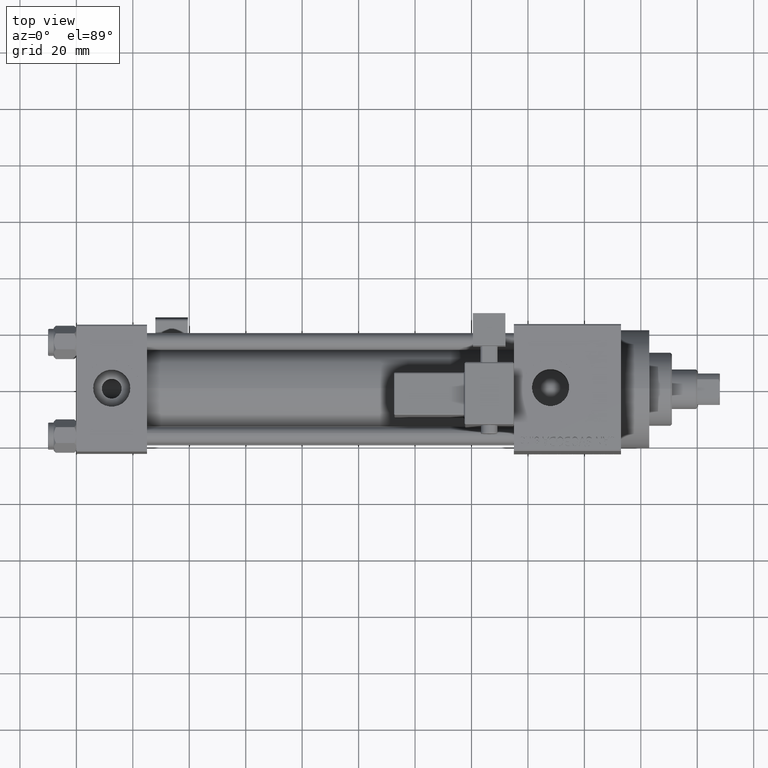
[diagram: clean part render]
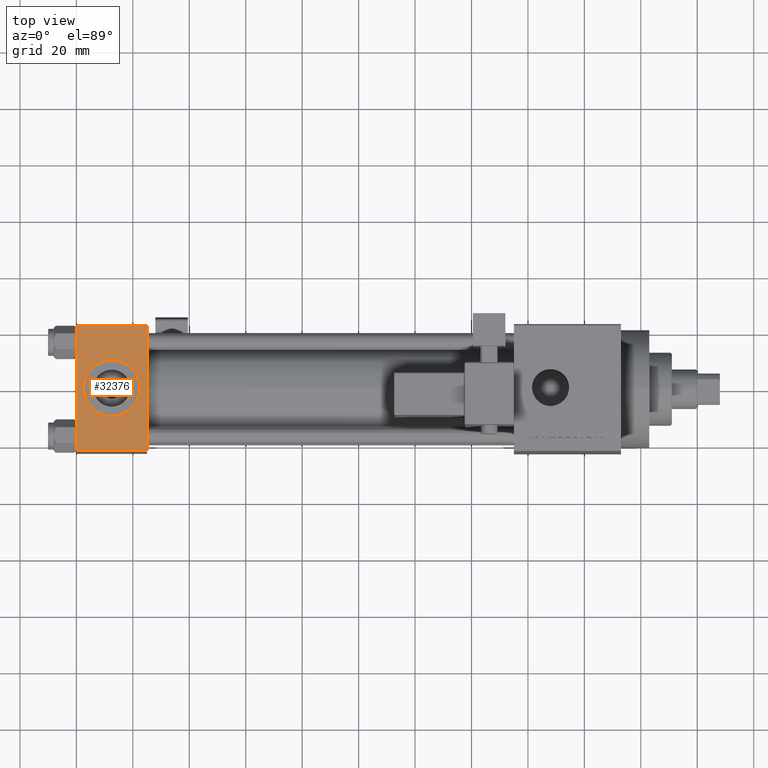
[diagram: same view with one face highlighted and labeled with its STEP entity id]
A machine part, top view. The second image highlights one B-rep face of the part: STEP entity #32376.
In plain terms, the highlighted planar face has unit normal (0, 0, -1).
Its self-contained STEP definition (entity closure, byte-faithful):
#90 = VECTOR ( 'NONE', #42861, 1000.000000000000000 ) ;
#1875 = CARTESIAN_POINT ( 'NONE',  ( 0.000000000000000000, 21.99999999999999289, 22.50000000000000355 ) ) ;
#1929 = DIRECTION ( 'NONE',  ( 1.000000000000000000, 0.000000000000000000, 0.000000000000000000 ) ) ;
#2356 = CARTESIAN_POINT ( 'NONE',  ( 0.000000000000000000, -21.99999999999997868, 22.50000000000000000 ) ) ;
#3723 = CARTESIAN_POINT ( 'NONE',  ( 0.000000000000000000, 21.99999999999999289, 22.50000000000000355 ) ) ;
#4296 = CARTESIAN_POINT ( 'NONE',  ( 25.00000000000000000, 22.50000000000000000, 22.50000000000000355 ) ) ;
#4976 = EDGE_CURVE ( 'NONE', #39117, #25825, #5700, .T. ) ;
#5700 = LINE ( 'NONE', #43842, #22023 ) ;
#8060 = CIRCLE ( 'NONE', #34526, 9.999999999999998224 ) ;
#9202 = VERTEX_POINT ( 'NONE', #39089 ) ;
#11837 = PLANE ( 'NONE',  #30373 ) ;
#14211 = EDGE_CURVE ( 'NONE', #29528, #25825, #14415, .T. ) ;
#14415 = LINE ( 'NONE', #38256, #47855 ) ;
#14662 = DIRECTION ( 'NONE',  ( 0.000000000000000000, -1.000000000000000000, -7.709882115452476934E-17 ) ) ;
#15840 = AXIS2_PLACEMENT_3D ( 'NONE', #30004, #45289, #30748 ) ;
#18253 = CIRCLE ( 'NONE', #15840, 9.999999999999998224 ) ;
#22023 = VECTOR ( 'NONE', #1929, 1000.000000000000000 ) ;
#22275 = EDGE_CURVE ( 'NONE', #29528, #30012, #38137, .T. ) ;
#22504 = ORIENTED_EDGE ( 'NONE', *, *, #22275, .T. ) ;
#22556 = VECTOR ( 'NONE', #25553, 1000.000000000000000 ) ;
#25553 = DIRECTION ( 'NONE',  ( 0.000000000000000000, -1.000000000000000000, -7.709882115452476934E-17 ) ) ;
#25825 = VERTEX_POINT ( 'NONE', #38949 ) ;
#25839 = CARTESIAN_POINT ( 'NONE',  ( 12.50000000000000000, -1.734723475976807094E-15, 22.50000000000000000 ) ) ;
#26316 = EDGE_CURVE ( 'NONE', #30012, #39117, #41113, .T. ) ;
#27154 = DIRECTION ( 'NONE',  ( 0.000000000000000000, 7.709882115452476934E-17, -1.000000000000000000 ) ) ;
#28630 = VERTEX_POINT ( 'NONE', #37143 ) ;
#28708 = ORIENTED_EDGE ( 'NONE', *, *, #26316, .T. ) ;
#29116 = DIRECTION ( 'NONE',  ( 0.000000000000000000, 0.000000000000000000, 1.000000000000000000 ) ) ;
#29528 = VERTEX_POINT ( 'NONE', #34634 ) ;
#30004 = CARTESIAN_POINT ( 'NONE',  ( 12.50000000000000000, -1.734723475976807094E-15, 22.50000000000000000 ) ) ;
#30012 = VERTEX_POINT ( 'NONE', #1875 ) ;
#30155 = EDGE_CURVE ( 'NONE', #9202, #28630, #18253, .T. ) ;
#30373 = AXIS2_PLACEMENT_3D ( 'NONE', #4296, #27154, #42695 ) ;
#30748 = DIRECTION ( 'NONE',  ( 1.000000000000000000, 0.000000000000000000, 0.000000000000000000 ) ) ;
#30925 = FACE_BOUND ( 'NONE', #49494, .T. ) ;
#32376 = ADVANCED_FACE ( 'NONE', ( #30925, #46204 ), #11837, .F. ) ;
#34526 = AXIS2_PLACEMENT_3D ( 'NONE', #25839, #29116, #48663 ) ;
#34634 = CARTESIAN_POINT ( 'NONE',  ( 25.00000000000000000, 21.99999999999999289, 22.50000000000000355 ) ) ;
#35458 = ORIENTED_EDGE ( 'NONE', *, *, #30155, .F. ) ;
#37111 = CARTESIAN_POINT ( 'NONE',  ( 0.000000000000000000, 22.50000000000000000, 22.50000000000000355 ) ) ;
#37143 = CARTESIAN_POINT ( 'NONE',  ( 22.50000000000000000, -1.734723475976807094E-15, 22.50000000000000000 ) ) ;
#38137 = LINE ( 'NONE', #3723, #90 ) ;
#38256 = CARTESIAN_POINT ( 'NONE',  ( 25.00000000000000000, 22.50000000000000000, 22.50000000000000355 ) ) ;
#38949 = CARTESIAN_POINT ( 'NONE',  ( 25.00000000000000000, -21.99999999999997868, 22.50000000000000000 ) ) ;
#39089 = CARTESIAN_POINT ( 'NONE',  ( 2.500000000000003997, -5.100766768294543310E-16, 22.50000000000000000 ) ) ;
#39117 = VERTEX_POINT ( 'NONE', #2356 ) ;
#39596 = ORIENTED_EDGE ( 'NONE', *, *, #4976, .T. ) ;
#40536 = EDGE_CURVE ( 'NONE', #28630, #9202, #8060, .T. ) ;
#41113 = LINE ( 'NONE', #37111, #22556 ) ;
#42695 = DIRECTION ( 'NONE',  ( 0.000000000000000000, 1.000000000000000000, 7.709882115452476934E-17 ) ) ;
#42861 = DIRECTION ( 'NONE',  ( -1.000000000000000000, 0.000000000000000000, 0.000000000000000000 ) ) ;
#43842 = CARTESIAN_POINT ( 'NONE',  ( 25.00000000000000000, -21.99999999999999289, 22.50000000000000000 ) ) ;
#45045 = ORIENTED_EDGE ( 'NONE', *, *, #14211, .F. ) ;
#45289 = DIRECTION ( 'NONE',  ( 0.000000000000000000, 0.000000000000000000, 1.000000000000000000 ) ) ;
#46204 = FACE_OUTER_BOUND ( 'NONE', #47957, .T. ) ;
#47855 = VECTOR ( 'NONE', #14662, 1000.000000000000000 ) ;
#47957 = EDGE_LOOP ( 'NONE', ( #28708, #39596, #45045, #22504 ) ) ;
#48663 = DIRECTION ( 'NONE',  ( 1.000000000000000000, 0.000000000000000000, 0.000000000000000000 ) ) ;
#49264 = ORIENTED_EDGE ( 'NONE', *, *, #40536, .F. ) ;
#49494 = EDGE_LOOP ( 'NONE', ( #49264, #35458 ) ) ;